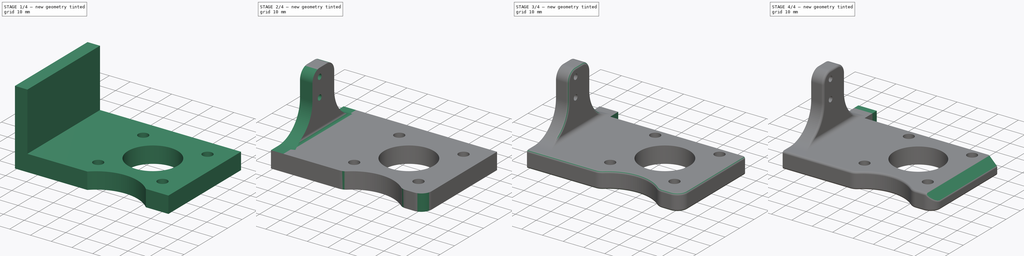
[diagram: build sequence overview — one tinted view per stage of 4, left to right]
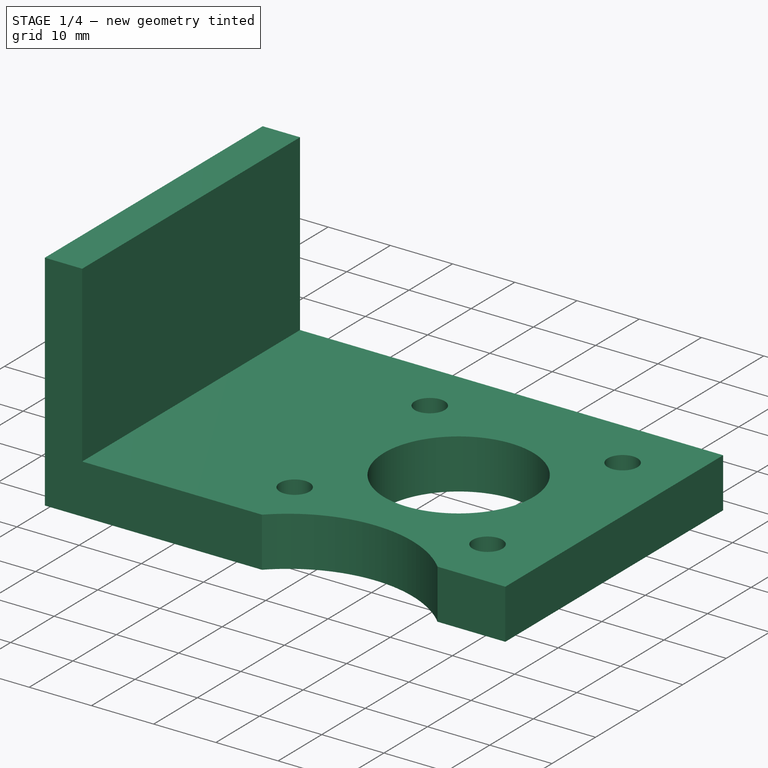
[diagram: stage 1 of 4 — iso view after this stage's code; geometry added in this stage tinted green]
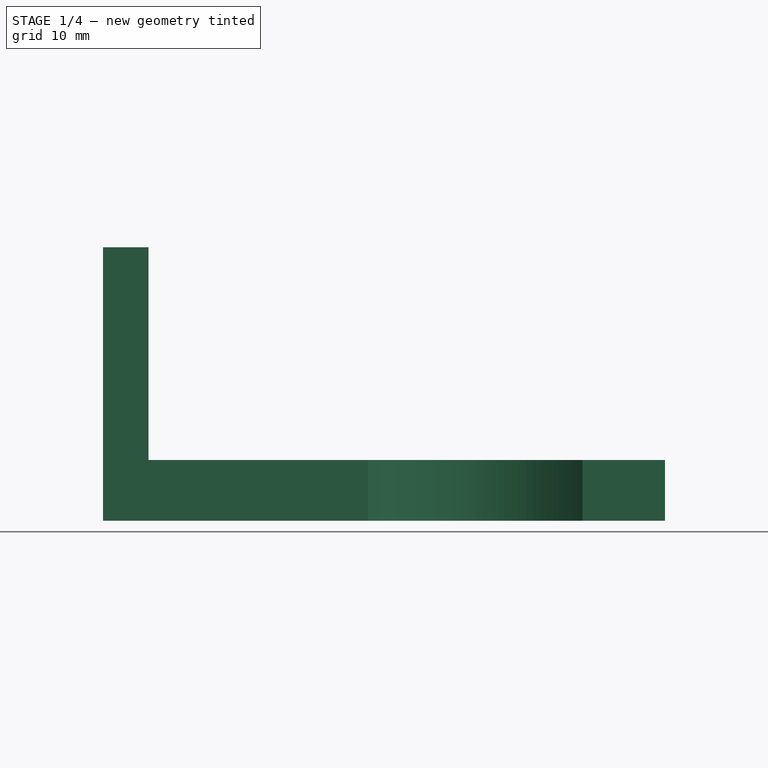
[diagram: stage 1 of 4 — front view after this stage's code; geometry added in this stage tinted green]
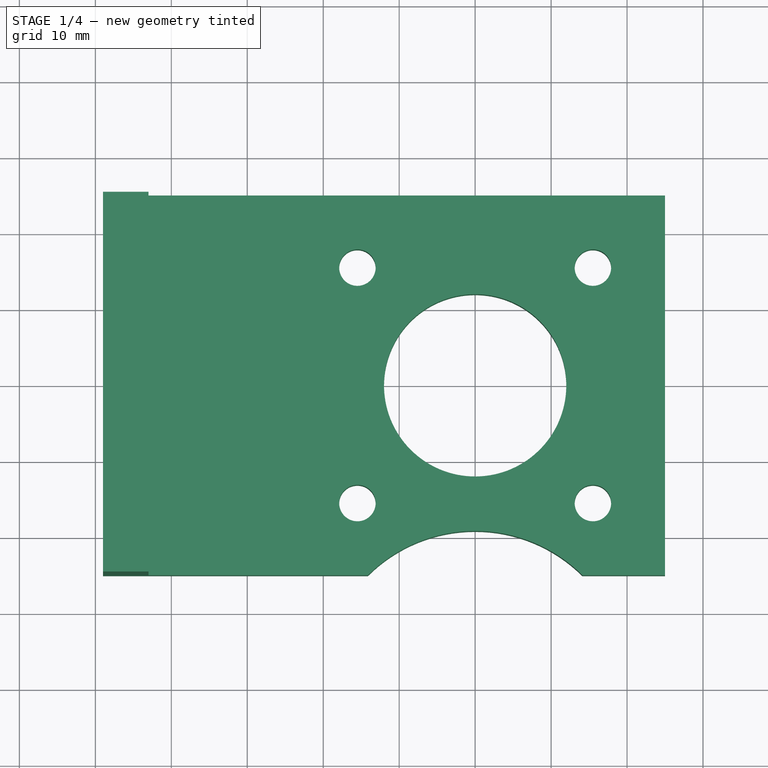
[diagram: stage 1 of 4 — top view after this stage's code; geometry added in this stage tinted green]
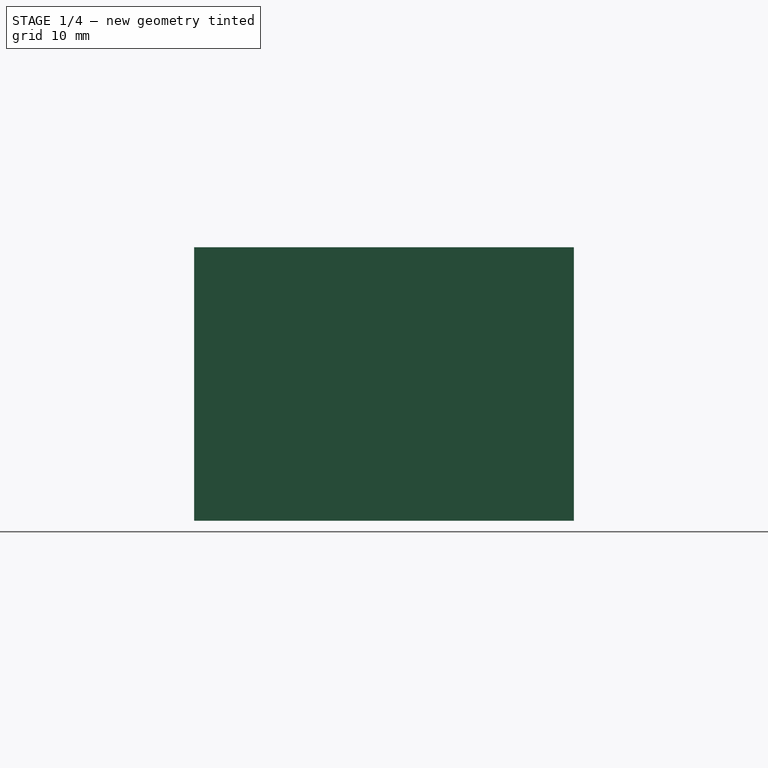
[diagram: stage 1 of 4 — right view after this stage's code; geometry added in this stage tinted green]
FCSTD DOCUMENT  (FreeCAD 0.16R6655 (Git))
Label: carriage_motor_mount_olive
License: All rights reserved
LicenseURL: http://en.wikipedia.org/wiki/All_rights_reserved
objects: Sketcher::SketchObject×7, PartDesign::Fillet×6, PartDesign::Pocket×4, PartDesign::Pad×3
note: 27 computed .brp shape members not serialized (recipe doc carries the construction recipe); baked Part::Feature solids carry a one-line shape summary decoded from their .brp

FEATURE [Sketcher::SketchObject] Sketch
  constraints (35):
    c: Coincident(g0,g1)
    c: Coincident(g1,g2)
    c: Coincident(g3,g0)
    c: Horizontal(g0)
    c: Horizontal(g2)
    c: Vertical(g1)
    c: Vertical(g3)
    c: Coincident(g5,g6)
    c: Coincident(g6,g7)
    c: Coincident(g7,g8)
    c: Coincident(g8,g5)
    c: Horizontal(g5)
    c: Horizontal(g7)
    c: Vertical(g6)
    c: Vertical(g8)
    c: Coincident(g4,g-1)
    c: Radius(g4) = 12
    c: Distance(g5) = 31
    c: DistanceX(g-1,g5) = 15.5
    c: DistanceY(g6) = -31
    c: DistanceY(g-1,g5) = 15.5
    c: Radius(g9) = 2.4
    c: Equal(g9,g12)
    c: Equal(g12,g11)
    c: Equal(g11,g10)
    c: Coincident(g5,g9)
    c: Coincident(g5,g10)
    c: Coincident(g7,g12)
    c: Coincident(g6,g11)
    c: DistanceY(g-1,g0) = 25
    c: DistanceY(g1) = -50
    c: DistanceX(g-1,g0) = 25
    c: DistanceX(g0) = 74
    c: Coincident(g2,g3)
    c: Coincident(g4,g4)
FEATURE [PartDesign::Pad] Pad
  Length = 8
  Length2 = 100
  Sketch = -> Sketch
  Type = 0
FEATURE [Sketcher::SketchObject] Sketch005
  Placement = pos=(0,0,8) rot=(0,0,1;0rad)
  Support = -> Pad [Face11]
  sketch-geometry (2):
    g0: LineSegment [constr] StartX=0 StartY=0 StartZ=0 EndX=0 EndY=-55 EndZ=0
    g1: Circle CenterX=0 CenterY=-39.1708 CenterZ=0 NormalX=0 NormalY=0 NormalZ=1 Radius=20
  constraints (5):
    c: Coincident(g0,g-1)
    c: Vertical(g0)
    c: DistanceY(g0) = -55
    c: PointOnObject(g1,g0)
    c: Radius(g1) = 20
FEATURE [PartDesign::Pocket] Pocket
  Length = 5
  Sketch = -> Sketch005
  Type = 1
FEATURE [Sketcher::SketchObject] Sketch006
  ExternalGeometry = -> [Pocket]
  Placement = pos=(0,25,0) rot=(0,0.707107,0.707107;3.14159rad)
  Support = -> Pocket [Face1]
  sketch-geometry (4):
    g0: LineSegment StartX=43 StartY=36 StartZ=0 EndX=49 EndY=36 EndZ=0
    g1: LineSegment StartX=43 StartY=36 StartZ=0 EndX=43 EndY=8 EndZ=0
    g2: LineSegment StartX=43 StartY=8 StartZ=0 EndX=49 EndY=8 EndZ=0
    g3: LineSegment StartX=49 StartY=8 StartZ=0 EndX=49 EndY=36 EndZ=0
  constraints (11):
    c: Coincident(g2,g3)
    c: Coincident(g2,g-4)
    c: Coincident(g1,g2)
    c: Horizontal(g2)
    c: Horizontal(g0)
    c: Vertical(g1)
    c: Vertical(g3)
    c: DistanceX(g0) = 6
    c: Coincident(g0,g3)
    c: Coincident(g0,g1)
    c: DistanceY(g3) = 28
FEATURE [PartDesign::Pad] Pad001
  Length = 10
  Length2 = 100
  Sketch = -> Sketch006
  Type = 3
  UpToFace = -> Pocket [Face6]
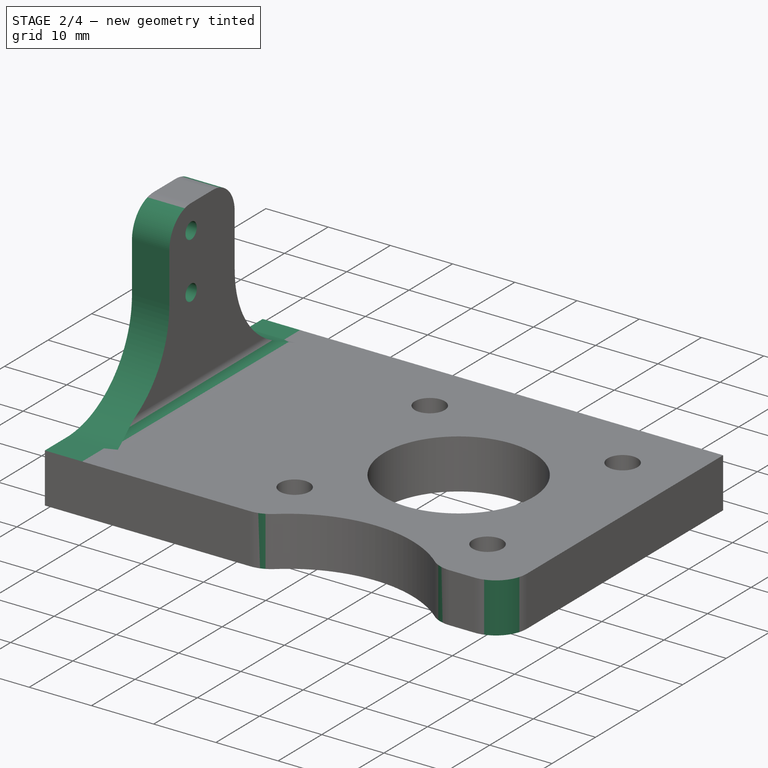
[diagram: stage 2 of 4 — iso view after this stage's code; geometry added in this stage tinted green]
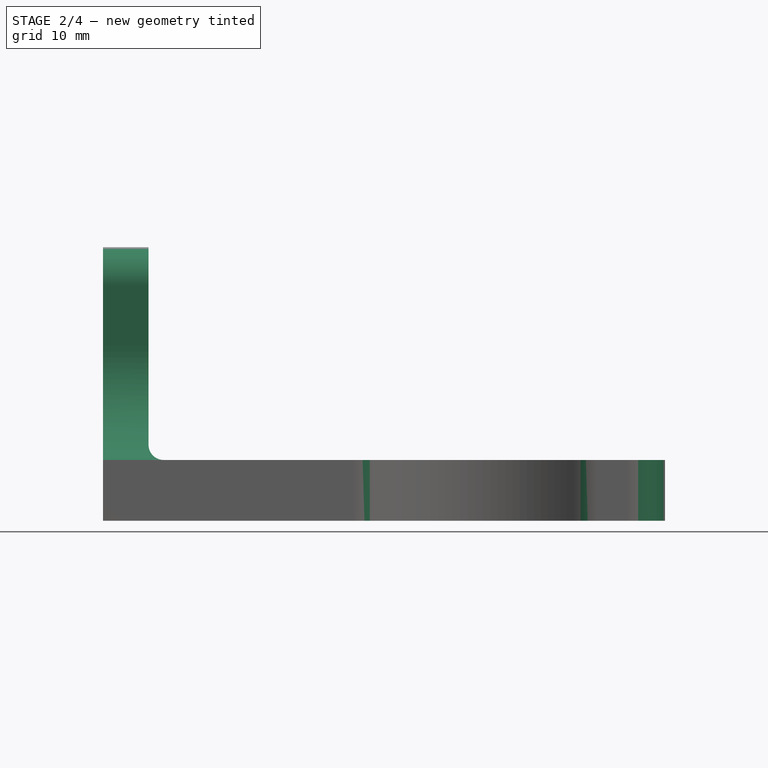
[diagram: stage 2 of 4 — front view after this stage's code; geometry added in this stage tinted green]
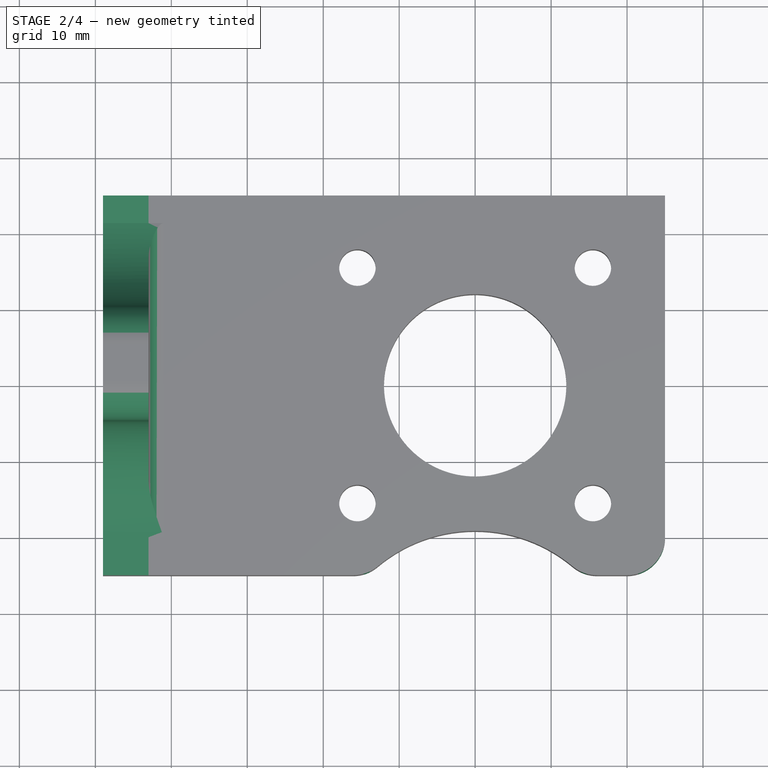
[diagram: stage 2 of 4 — top view after this stage's code; geometry added in this stage tinted green]
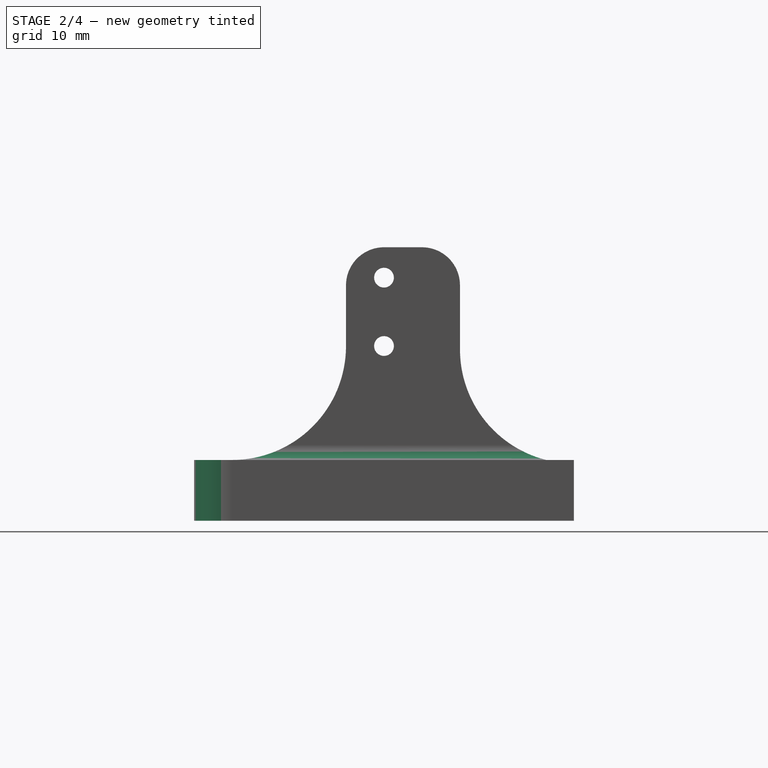
[diagram: stage 2 of 4 — right view after this stage's code; geometry added in this stage tinted green]
FEATURE [Sketcher::SketchObject] Sketch008
  ExternalGeometry = -> [Pad001]
  Placement = pos=(-43,0,0) rot=(0.57735,0.57735,0.57735;2.0944rad)
  Support = -> Pad001 [Face18]
  sketch-geometry (13):
    g0: LineSegment StartX=10 StartY=48 StartZ=0 EndX=25 EndY=48 EndZ=0
    g1: LineSegment StartX=25 StartY=48 StartZ=0 EndX=25 EndY=8 EndZ=0
    g2: LineSegment StartX=25 StartY=8 StartZ=0 EndX=21.3536 EndY=8 EndZ=0
    g3: LineSegment StartX=10 StartY=22.55 StartZ=0 EndX=10 EndY=48 EndZ=0
    g4: ArcOfCircle CenterX=25 CenterY=22.55 CenterZ=0 NormalX=0 NormalY=0 NormalZ=1 Radius=15 StartAngle=3.14159 EndAngle=4.46684
    g5: LineSegment StartX=-5 StartY=48 StartZ=0 EndX=-25 EndY=48 EndZ=0
    g6: LineSegment StartX=-25 StartY=48 StartZ=0 EndX=-25 EndY=8 EndZ=0
    g7: LineSegment StartX=-25 StartY=8 StartZ=0 EndX=-20 EndY=8 EndZ=0
    g8: LineSegment StartX=-5 StartY=23 StartZ=0 EndX=-5 EndY=48 EndZ=0
    g9: ArcOfCircle CenterX=-20 CenterY=23 CenterZ=0 NormalX=0 NormalY=0 NormalZ=1 Radius=15 StartAngle=4.71239 EndAngle=6.28319
    g10: LineSegment [constr] StartX=0 StartY=32 StartZ=0 EndX=0 EndY=23 EndZ=0
    g11: Circle CenterX=0 CenterY=32 CenterZ=0 NormalX=0 NormalY=0 NormalZ=1 Radius=1.3
    g12: Circle CenterX=0 CenterY=23 CenterZ=0 NormalX=0 NormalY=0 NormalZ=1 Radius=1.3
  constraints (35):
    c: Coincident(g0,g1)
    c: Coincident(g0,g3)
    c: Coincident(g1,g2)
    c: Coincident(g2,g4)
    c: Coincident(g3,g4)
    c: Radius(g4) = 15
    c: Horizontal(g2)
    c: Horizontal(g0)
    c: Vertical(g1)
    c: Vertical(g3)
    c: Coincident(g1,g-3)
    c: Coincident(g5,g6)
    c: Coincident(g6,g7)
    c: Coincident(g8,g5)
    c: Horizontal(g5)
    c: Horizontal(g7)
    c: Vertical(g6)
    c: Vertical(g8)
    c: Tangent(g8,g9) = -1.5708
    c: Tangent(g7,g9) = -1.5708
    c: Radius(g9) = 15
    c: Coincident(g6,g-3)
    c: DistanceX(g0,g5) = -15
    c: DistanceX(g5) = -20
    c: DistanceY(g1) = -40
    c: PointOnObject(g0,g5)
    c: Tangent(g3,g4)
    c: DistanceX(g10) = 0
    c: Vertical(g10)
    c: DistanceY(g10) = -9
    c: Coincident(g10,g11)
    c: Coincident(g10,g12)
    c: Radius(g11) = 1.3
    c: Equal(g11,g12)
    c: DistanceY(g-4,g10) = -4
FEATURE [PartDesign::Pocket] Pocket001
  Length = 5
  Sketch = -> Sketch008
  Type = 1
FEATURE [PartDesign::Fillet] Fillet
  Base = -> Pocket001 [Edge59,Edge60,Edge21,Edge18,Edge16]
  Radius = 5
FEATURE [PartDesign::Fillet] Fillet001
  Base = -> Fillet [Edge48]
  Radius = 2
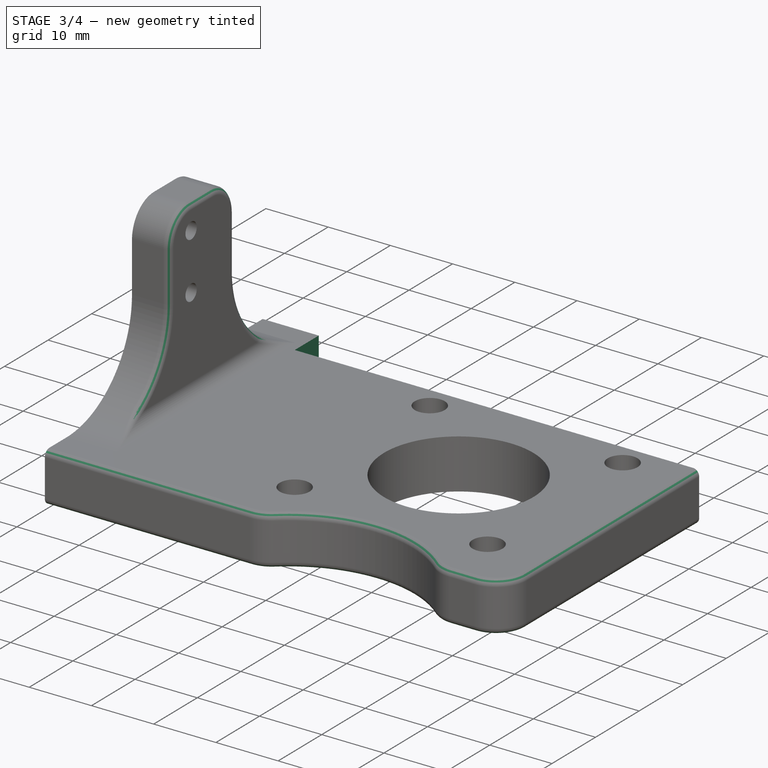
[diagram: stage 3 of 4 — iso view after this stage's code; geometry added in this stage tinted green]
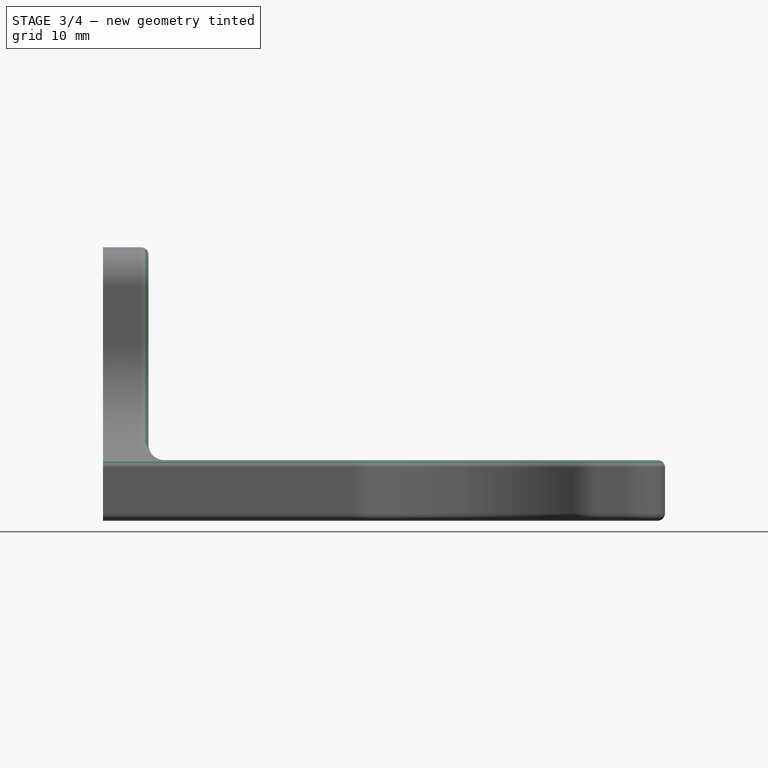
[diagram: stage 3 of 4 — front view after this stage's code; geometry added in this stage tinted green]
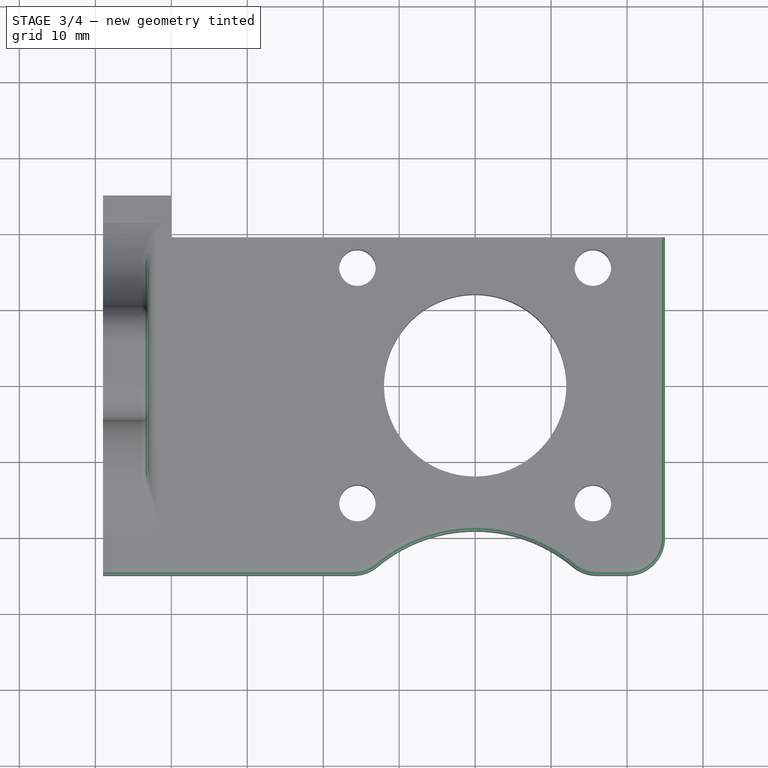
[diagram: stage 3 of 4 — top view after this stage's code; geometry added in this stage tinted green]
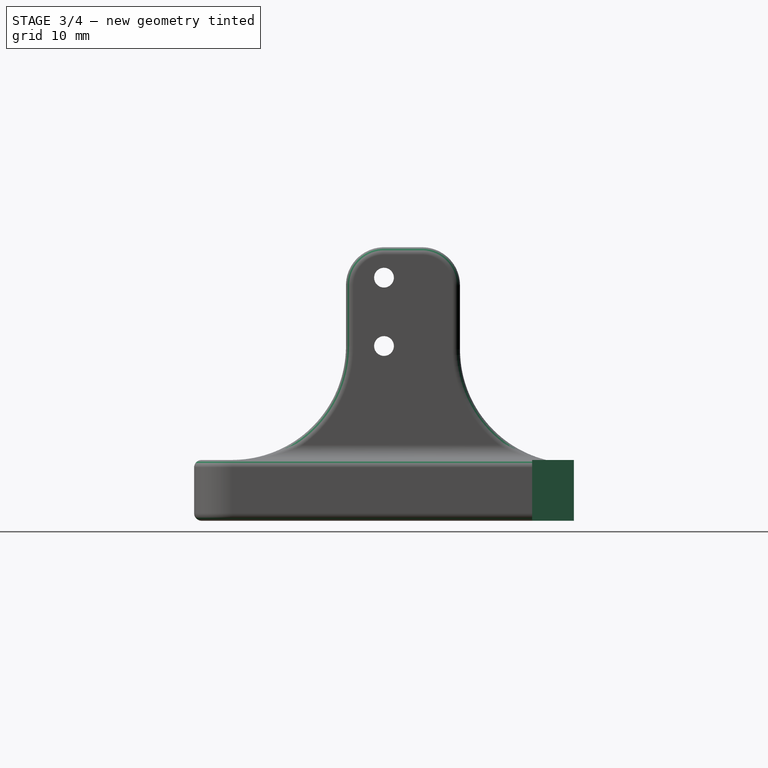
[diagram: stage 3 of 4 — right view after this stage's code; geometry added in this stage tinted green]
FEATURE [PartDesign::Fillet] Fillet002
  Base = -> Fillet001 [Edge19,Edge61,Edge62,Edge64,Edge65,Edge63,Edge31]
  Radius = 1
FEATURE [PartDesign::Fillet] Fillet003
  Base = -> Fillet002 [Edge10,Edge42,Edge12,Edge14,Edge13,Edge11,Edge9,Edge7]
  Radius = 1
FEATURE [PartDesign::Fillet] Fillet004
  Base = -> Fillet003 [Edge72,Edge74,Edge73,Edge71,Edge69,Edge68,Edge67]
  Radius = 1
FEATURE [Sketcher::SketchObject] Sketch009
  ExternalGeometry = -> [Fillet004]
  Placement = pos=(0,0,8) rot=(0,0,1;0rad)
  Support = -> Fillet004 [Face6]
  sketch-geometry (4):
    g0: LineSegment StartX=-40 StartY=30.5 StartZ=0 EndX=35 EndY=30.5 EndZ=0
    g1: LineSegment StartX=35 StartY=30.5 StartZ=0 EndX=35 EndY=19.5 EndZ=0
    g2: LineSegment StartX=35 StartY=19.5 StartZ=0 EndX=-40 EndY=19.5 EndZ=0
    g3: LineSegment StartX=-40 StartY=19.5 StartZ=0 EndX=-40 EndY=30.5 EndZ=0
  constraints (12):
    c: Coincident(g0,g1)
    c: Coincident(g1,g2)
    c: Coincident(g2,g3)
    c: Coincident(g3,g0)
    c: Horizontal(g0)
    c: Horizontal(g2)
    c: Vertical(g1)
    c: Vertical(g3)
    c: DistanceY(g-3,g1) = -5.5
    c: DistanceY(g1) = -11
    c: DistanceX(g-1,g1) = 35
    c: DistanceX(g-1,g2) = -40
FEATURE [PartDesign::Pocket] Pocket002
  Length = 10
  Sketch = -> Sketch009
  Type = 0
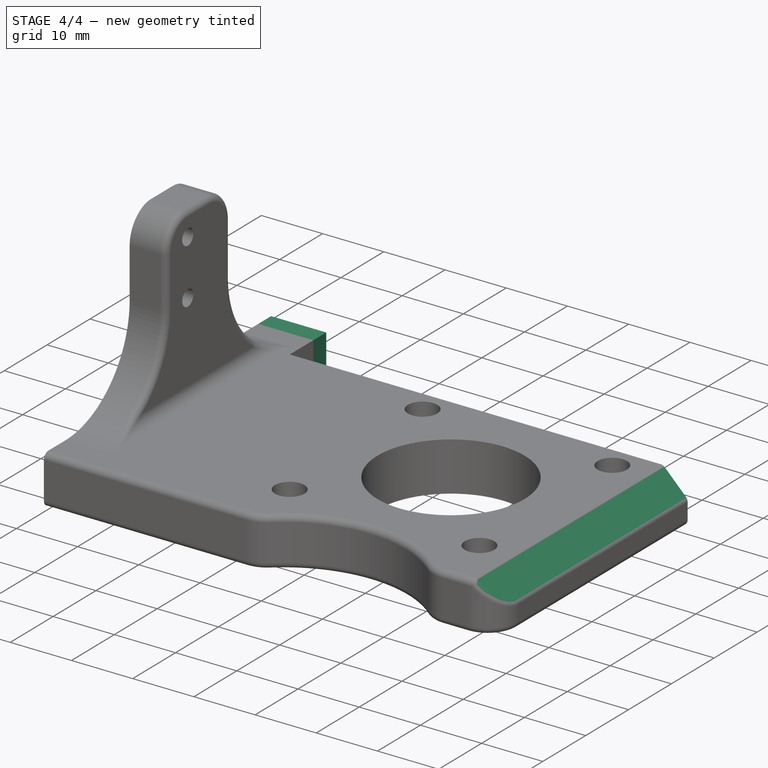
[diagram: stage 4 of 4 — iso view after this stage's code; geometry added in this stage tinted green]
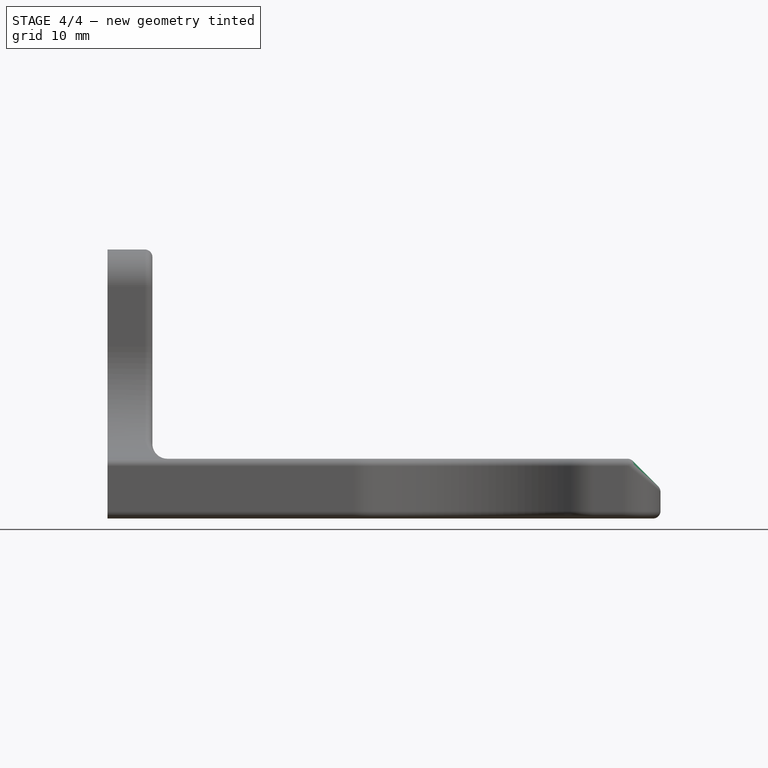
[diagram: stage 4 of 4 — front view after this stage's code; geometry added in this stage tinted green]
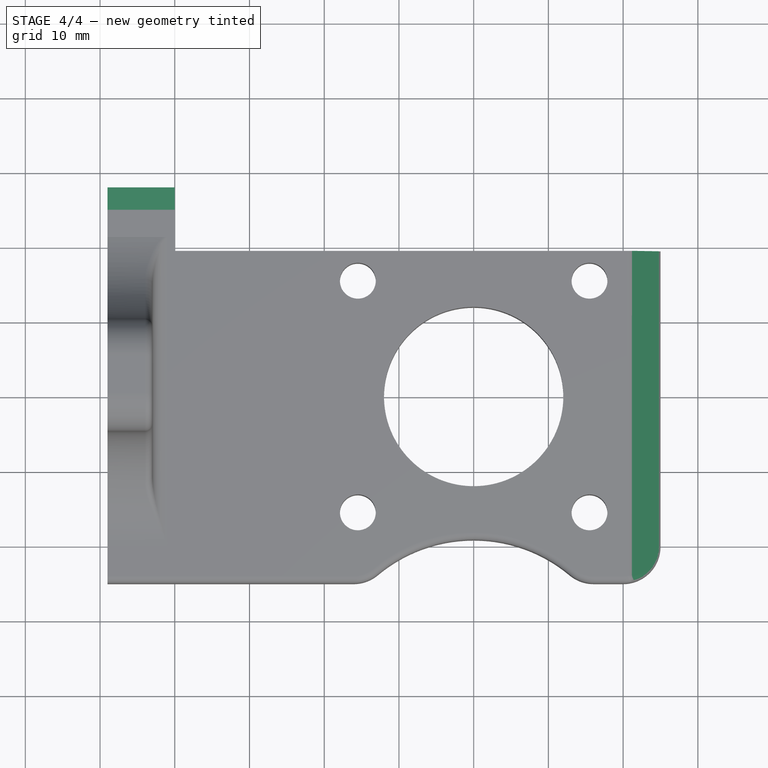
[diagram: stage 4 of 4 — top view after this stage's code; geometry added in this stage tinted green]
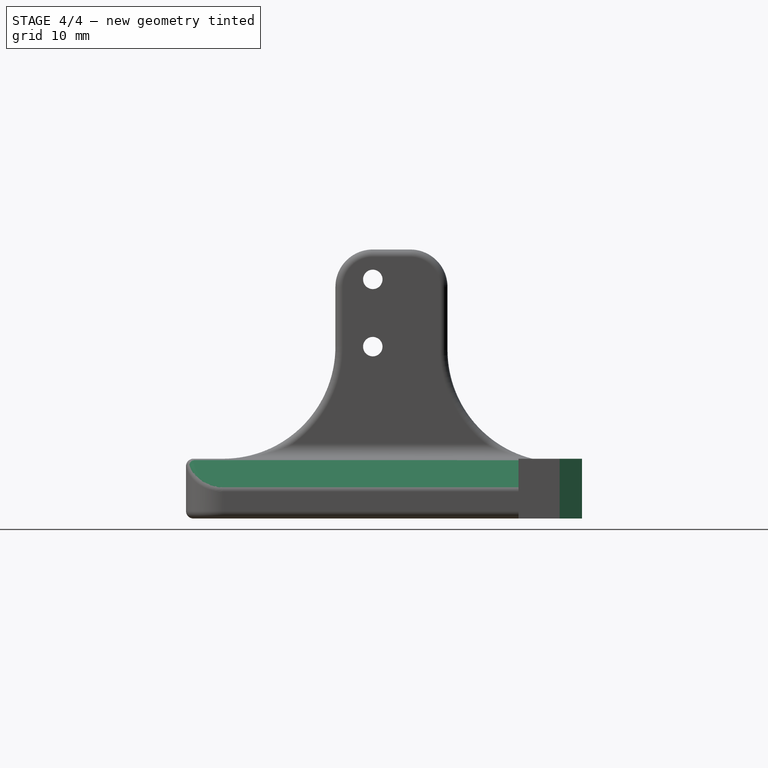
[diagram: stage 4 of 4 — right view after this stage's code; geometry added in this stage tinted green]
FEATURE [Sketcher::SketchObject] Sketch010
  Placement = pos=(0,19.5,0) rot=(0,0.707107,0.707107;3.14159rad)
  Support = -> Pocket002 [Face7]
  sketch-geometry (3):
    g0: LineSegment StartX=-20 StartY=9 StartZ=0 EndX=-26 EndY=3 EndZ=0
    g1: LineSegment StartX=-20 StartY=9 StartZ=0 EndX=-26 EndY=9 EndZ=0
    g2: LineSegment StartX=-26 StartY=9 StartZ=0 EndX=-26 EndY=3 EndZ=0
  constraints (9):
    c: DistanceY(g-1,g0) = 9
    c: DistanceY(g-1,g0) = 3
    c: DistanceX(g-1,g0) = -26
    c: DistanceX(g-1,g0) = -20
    c: Coincident(g2,g0)
    c: Vertical(g2)
    c: Horizontal(g1)
    c: Coincident(g1,g2)
    c: Coincident(g0,g1)
FEATURE [PartDesign::Pocket] Pocket003
  Length = 46
  Sketch = -> Sketch010
  Type = 0
FEATURE [PartDesign::Fillet] Fillet005
  Base = -> Pocket003 [Edge10]
  Radius = 1
FEATURE [Sketcher::SketchObject] Sketch011
  ExternalGeometry = -> [Fillet005]
  Placement = pos=(0,25,0) rot=(0,0.707107,0.707107;3.14159rad)
  Support = -> Fillet005 [Face6]
  sketch-geometry (4):
    g0: LineSegment StartX=40 StartY=0 StartZ=0 EndX=49 EndY=0 EndZ=0
    g1: LineSegment StartX=49 StartY=0 StartZ=0 EndX=49 EndY=8 EndZ=0
    g2: LineSegment StartX=49 StartY=8 StartZ=0 EndX=40 EndY=8 EndZ=0
    g3: LineSegment StartX=40 StartY=8 StartZ=0 EndX=40 EndY=0 EndZ=0
  constraints (10):
    c: Coincident(g0,g1)
    c: Coincident(g1,g2)
    c: Coincident(g2,g3)
    c: Coincident(g3,g0)
    c: Horizontal(g0)
    c: Horizontal(g2)
    c: Vertical(g1)
    c: Vertical(g3)
    c: Coincident(g0,g-4)
    c: Coincident(g1,g-3)
FEATURE [PartDesign::Pad] Pad002
  Length = 3
  Length2 = 100
  Sketch = -> Sketch011
  Type = 0
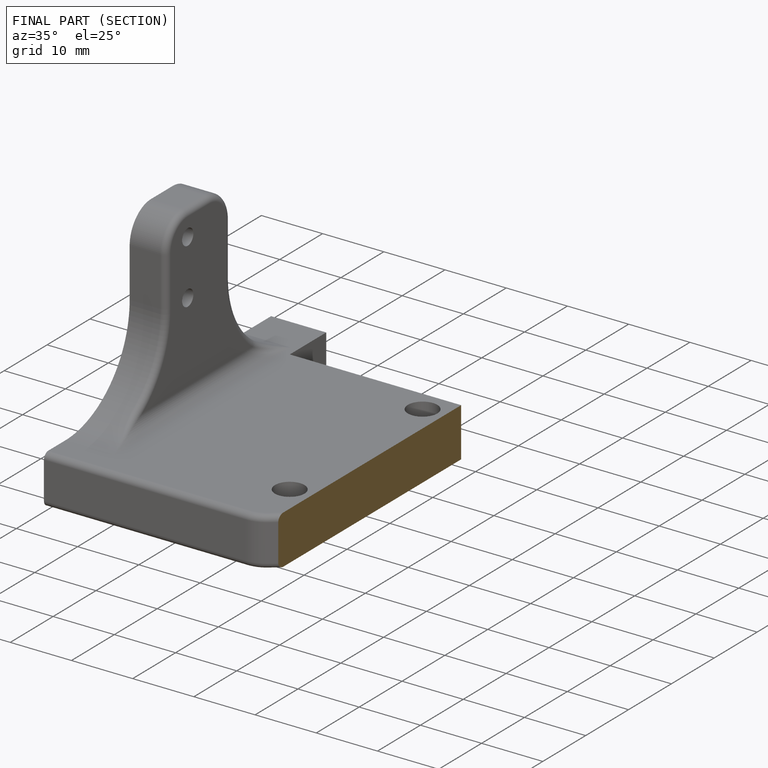
[diagram: finished part — half-section view (interior)]
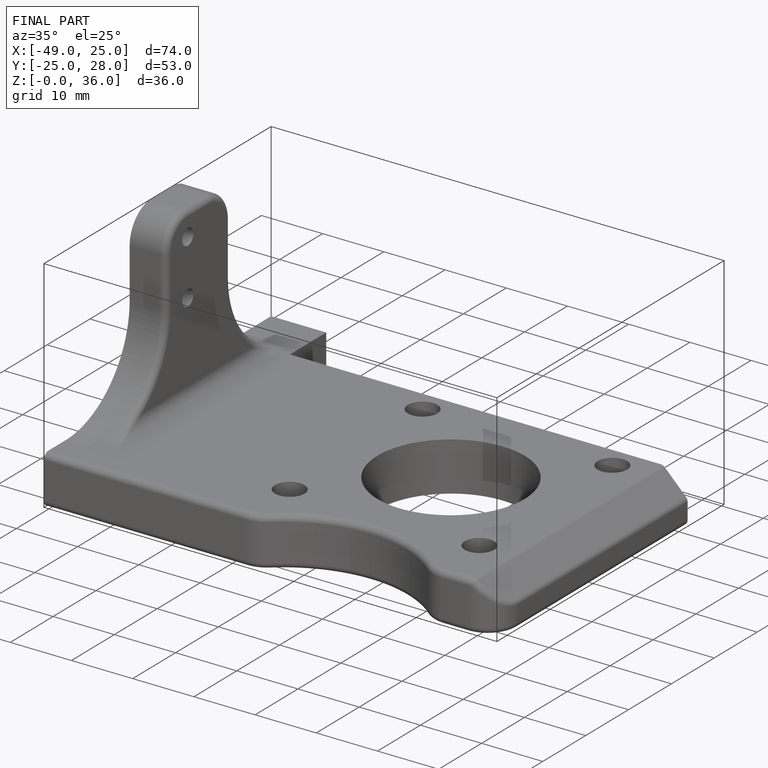
[diagram: finished part — iso view with bounding-box wireframe]
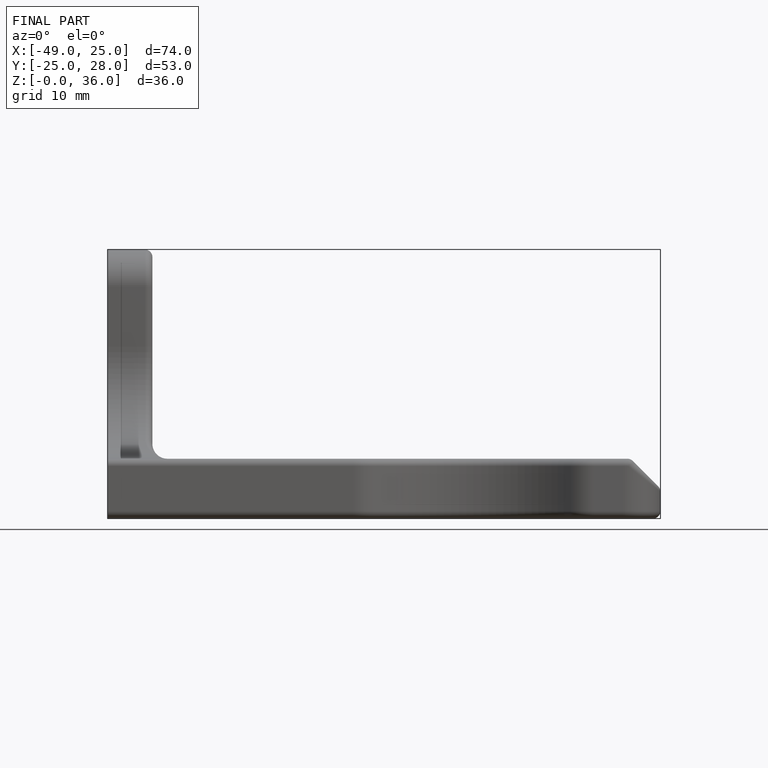
[diagram: finished part — front view with bounding-box wireframe]
